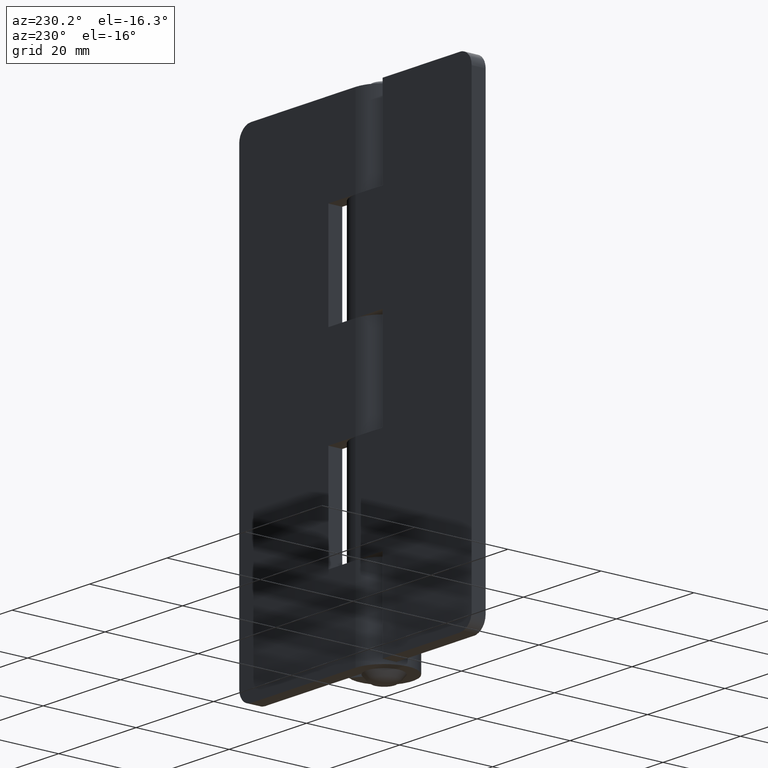
[diagram: clean part render]
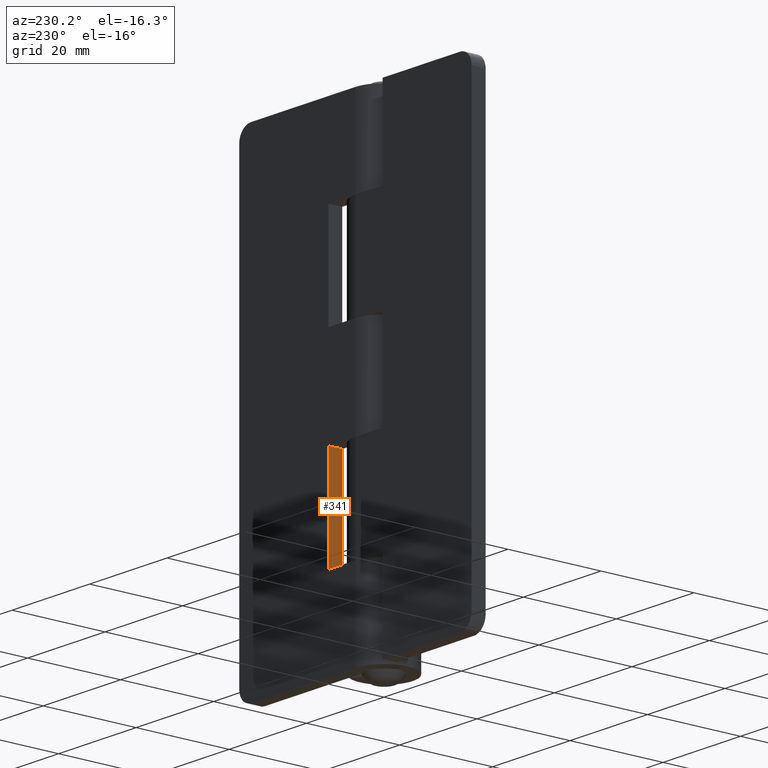
[diagram: same view with one face highlighted and labeled with its STEP entity id]
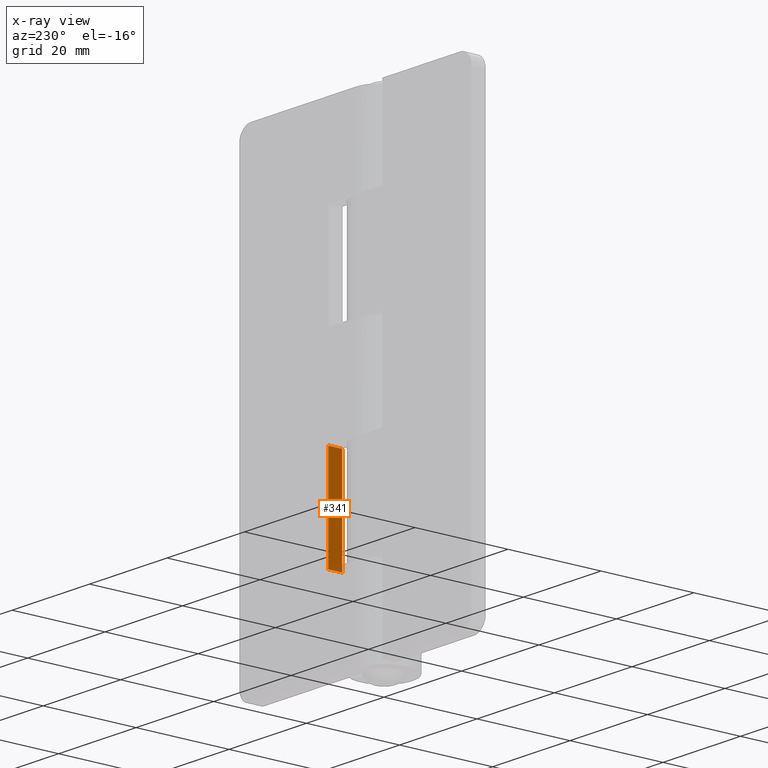
[diagram: x-ray of the same camera — body ghosted, the highlighted face saturated]
A machine part, auxiliary view. The second image highlights one B-rep face of the part: STEP entity #341.
The next image is the same camera in x-ray: the body ghosted, the highlighted face saturated — about 0% of this face is hidden behind the body in this view.
In plain terms, the highlighted face is a freeform B-spline surface patch.
Its self-contained STEP definition (entity closure, byte-faithful):
#222=CARTESIAN_POINT('',(7.0,6.150000000000000,39.799999999999997));
#223=VERTEX_POINT('',#222);
#229=CARTESIAN_POINT('',(7.0,3.150000000000000,39.799999999999997));
#230=VERTEX_POINT('',#229);
#231=CARTESIAN_POINT('',(7.0,3.150000000000000,39.799999999999997));
#232=CARTESIAN_POINT('',(7.0,6.150000000000000,39.799999999999997));
#233=QUASI_UNIFORM_CURVE('',1,(#231,#232),.UNSPECIFIED.,.F.,.U.);
#234=EDGE_CURVE('',#230,#223,#233,.T.);
#249=CARTESIAN_POINT('',(7.0,3.150000000000000,18.500000000000000));
#250=VERTEX_POINT('',#249);
#251=CARTESIAN_POINT('',(7.0,6.150000000000000,18.500000000000000));
#252=VERTEX_POINT('',#251);
#253=CARTESIAN_POINT('',(7.0,3.150000000000000,18.500000000000000));
#254=CARTESIAN_POINT('',(7.0,6.150000000000000,18.500000000000000));
#255=QUASI_UNIFORM_CURVE('',1,(#253,#254),.UNSPECIFIED.,.F.,.U.);
#256=EDGE_CURVE('',#250,#252,#255,.T.);
#322=CARTESIAN_POINT('',(7.0,6.299850096114726,40.863934158919839));
#323=CARTESIAN_POINT('',(7.0,6.299850096114726,17.436064508022291));
#324=CARTESIAN_POINT('',(7.0,3.000150145284086,40.863934158919839));
#325=CARTESIAN_POINT('',(7.0,3.000150145284086,17.436064508022291));
#326=B_SPLINE_SURFACE_WITH_KNOTS('',1,1,((#322,#324),(#323,#325)),.UNSPECIFIED.,.F.,.F.,.U.,(2,2),(2,2),(0.0,23.427869650897549),(0.0,3.299699950830640),.UNSPECIFIED.);
#327=ORIENTED_EDGE('',*,*,#234,.T.);
#328=CARTESIAN_POINT('',(7.0,6.150000000000000,39.799999999999997));
#329=CARTESIAN_POINT('',(7.0,6.150000000000000,18.500000000000000));
#330=QUASI_UNIFORM_CURVE('',1,(#328,#329),.UNSPECIFIED.,.F.,.U.);
#331=EDGE_CURVE('',#223,#252,#330,.T.);
#332=ORIENTED_EDGE('',*,*,#331,.T.);
#333=ORIENTED_EDGE('',*,*,#256,.F.);
#334=CARTESIAN_POINT('',(7.0,3.150000000000000,39.799999999999997));
#335=CARTESIAN_POINT('',(7.0,3.150000000000000,18.500000000000000));
#336=QUASI_UNIFORM_CURVE('',1,(#334,#335),.UNSPECIFIED.,.F.,.U.);
#337=EDGE_CURVE('',#230,#250,#336,.T.);
#338=ORIENTED_EDGE('',*,*,#337,.F.);
#339=EDGE_LOOP('',(#327,#332,#333,#338));
#340=FACE_OUTER_BOUND('',#339,.T.);
#341=ADVANCED_FACE('',(#340),#326,.T.);